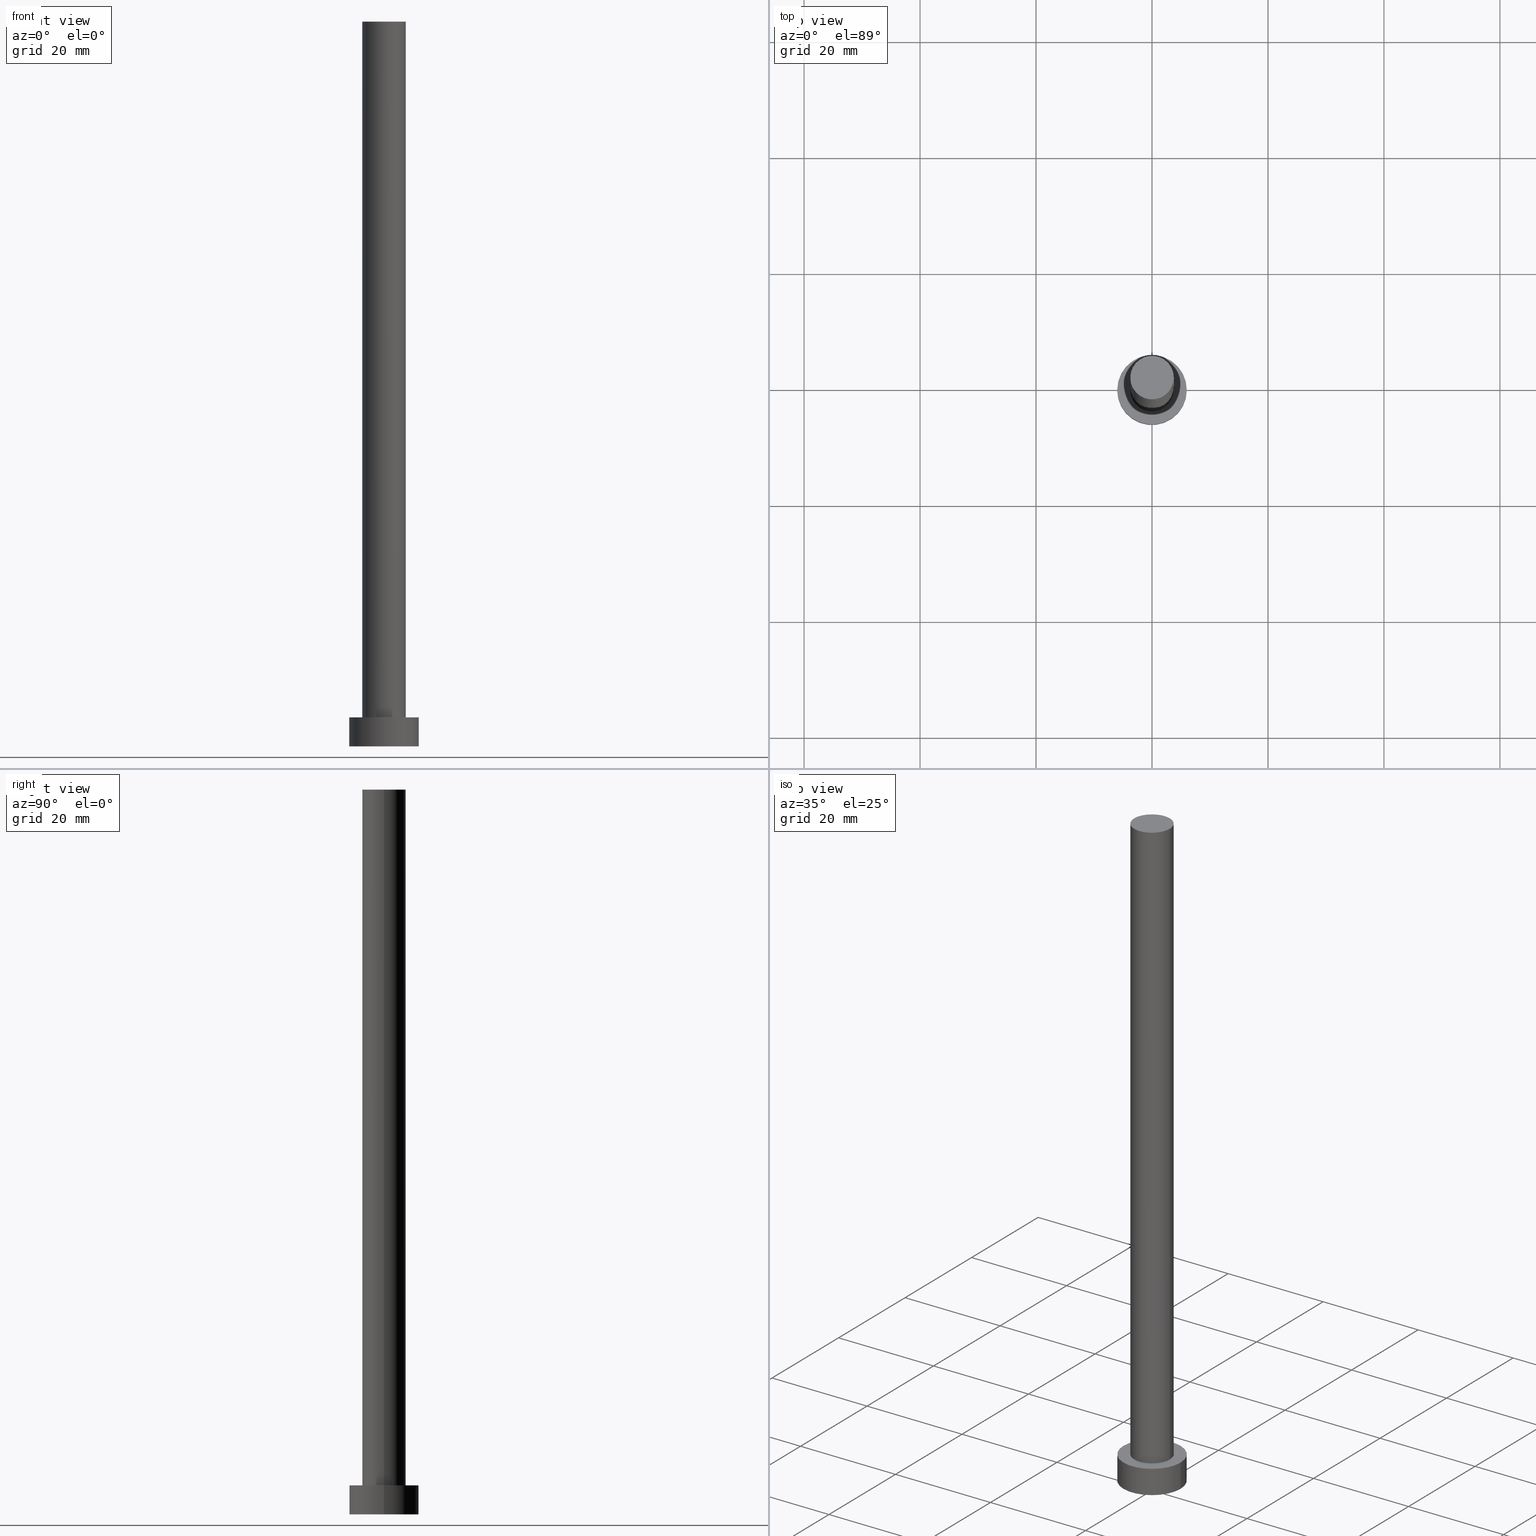
[diagram: canonical four-view strip — front | top / right | iso, engineering-drawing reading convention]
A machine part, canonical four-view strip (front | top / right | iso — engineering-drawing reading convention). The complete STEP part file that produces these views, byte-faithful:
ISO-10303-21;
HEADER;
FILE_DESCRIPTION (( 'STEP AP203' ),
    '1' );
FILE_NAME ('e15b.STEP',
    '2023-02-12T11:57:41',
    ( '' ),
    ( '' ),
    'SwSTEP 2.0',
    'SolidWorks 2019',
    '' );
FILE_SCHEMA (( 'CONFIG_CONTROL_DESIGN' ));
ENDSEC;

DATA;
#1 = CC_DESIGN_APPROVAL ( #147, ( #114 ) ) ;
#2 = ORIENTED_EDGE ( 'NONE', *, *, #187, .F. ) ;
#3 = ADVANCED_FACE ( 'NONE', ( #86 ), #8, .T. ) ;
#4 =( GEOMETRIC_REPRESENTATION_CONTEXT ( 3 ) GLOBAL_UNCERTAINTY_ASSIGNED_CONTEXT ( ( #185 ) ) GLOBAL_UNIT_ASSIGNED_CONTEXT ( ( #99, #79, #65 ) ) REPRESENTATION_CONTEXT ( 'NONE', 'WORKASPACE' ) );
#5 = VERTEX_POINT ( 'NONE', #141 ) ;
#6 = COORDINATED_UNIVERSAL_TIME_OFFSET ( 1, 0, .AHEAD. ) ;
#7 = EDGE_CURVE ( 'NONE', #5, #145, #94, .T. ) ;
#8 = PLANE ( 'NONE',  #134 ) ;
#9 = CLOSED_SHELL ( 'NONE', ( #250, #196, #70, #109, #120, #223, #3 ) ) ;
#10 = APPROVAL_DATE_TIME ( #212, #161 ) ;
#11 = CARTESIAN_POINT ( 'NONE',  ( 0.000000000000000000, 0.000000000000000000, 5.000000000000000000 ) ) ;
#12 = CYLINDRICAL_SURFACE ( 'NONE', #98, 3.750000000000000000 ) ;
#13 = CARTESIAN_POINT ( 'NONE',  ( -6.000000000000000888, 0.000000000000000000, 5.000000000000000000 ) ) ;
#14 = DIRECTION ( 'NONE',  ( 0.000000000000000000, 0.000000000000000000, 1.000000000000000000 ) ) ;
#15 = EDGE_CURVE ( 'NONE', #145, #5, #165, .T. ) ;
#16 = CARTESIAN_POINT ( 'NONE',  ( -6.000000000000000888, 0.000000000000000000, 5.000000000000000000 ) ) ;
#17 = EDGE_CURVE ( 'NONE', #238, #192, #171, .T. ) ;
#18 = PERSON_AND_ORGANIZATION ( #198, #132 ) ;
#19 = AXIS2_PLACEMENT_3D ( 'NONE', #157, #156, #122 ) ;
#20 = CYLINDRICAL_SURFACE ( 'NONE', #178, 3.750000000000000000 ) ;
#21 = ORIENTED_EDGE ( 'NONE', *, *, #17, .T. ) ;
#22 = ORIENTED_EDGE ( 'NONE', *, *, #226, .F. ) ;
#23 = PERSON_AND_ORGANIZATION ( #198, #132 ) ;
#24 = LINE ( 'NONE', #58, #126 ) ;
#25 = CC_DESIGN_PERSON_AND_ORGANIZATION_ASSIGNMENT ( #136, #194, ( #82 ) ) ;
#26 = SECURITY_CLASSIFICATION ( '', '', #207 ) ;
#27 = CARTESIAN_POINT ( 'NONE',  ( 0.000000000000000000, 0.000000000000000000, 125.0000000000000000 ) ) ;
#28 = DIRECTION ( 'NONE',  ( 1.000000000000000000, 0.000000000000000000, 0.000000000000000000 ) ) ;
#29 = VECTOR ( 'NONE', #222, 1000.000000000000000 ) ;
#30 = PLANE ( 'NONE',  #169 ) ;
#31 = CC_DESIGN_PERSON_AND_ORGANIZATION_ASSIGNMENT ( #84, #35, ( #26 ) ) ;
#32 = DIRECTION ( 'NONE',  ( 0.000000000000000000, 0.000000000000000000, 1.000000000000000000 ) ) ;
#33 = DIRECTION ( 'NONE',  ( -0.000000000000000000, -0.000000000000000000, -1.000000000000000000 ) ) ;
#34 = EDGE_CURVE ( 'NONE', #192, #238, #176, .T. ) ;
#35 = PERSON_AND_ORGANIZATION_ROLE ( 'classification_officer' ) ;
#36 = EDGE_LOOP ( 'NONE', ( #108, #2 ) ) ;
#37 = PERSON_AND_ORGANIZATION_ROLE ( 'creator' ) ;
#38 = AXIS2_PLACEMENT_3D ( 'NONE', #183, #123, #179 ) ;
#39 = COORDINATED_UNIVERSAL_TIME_OFFSET ( 1, 0, .AHEAD. ) ;
#40 = DIRECTION ( 'NONE',  ( -0.000000000000000000, -0.000000000000000000, -1.000000000000000000 ) ) ;
#41 = CARTESIAN_POINT ( 'NONE',  ( 0.000000000000000000, 0.000000000000000000, 125.0000000000000000 ) ) ;
#42 = PRODUCT_DEFINITION_SHAPE ( 'NONE', 'NONE',  #130 ) ;
#43 = FACE_OUTER_BOUND ( 'NONE', #233, .T. ) ;
#44 = ADVANCED_BREP_SHAPE_REPRESENTATION ( 'e15b', ( #143, #175 ), #4 ) ;
#45 = CC_DESIGN_SECURITY_CLASSIFICATION ( #26, ( #114 ) ) ;
#46 = VERTEX_POINT ( 'NONE', #160 ) ;
#47 = MECHANICAL_CONTEXT ( 'NONE', #103, 'mechanical' ) ;
#48 = CC_DESIGN_DATE_AND_TIME_ASSIGNMENT ( #189, #253, ( #26 ) ) ;
#49 = ORIENTED_EDGE ( 'NONE', *, *, #15, .T. ) ;
#50 = CIRCLE ( 'NONE', #158, 6.000000000000000888 ) ;
#51 = APPROVAL_DATE_TIME ( #57, #217 ) ;
#52 = CC_DESIGN_APPROVAL ( #217, ( #26 ) ) ;
#53 = APPROVAL_ROLE ( '' ) ;
#54 = EDGE_CURVE ( 'NONE', #46, #64, #50, .T. ) ;
#55 = ORIENTED_EDGE ( 'NONE', *, *, #34, .T. ) ;
#56 = AXIS2_PLACEMENT_3D ( 'NONE', #115, #96, #59 ) ;
#57 = DATE_AND_TIME ( #240, #218 ) ;
#58 = CARTESIAN_POINT ( 'NONE',  ( -3.750000000000000000, 0.000000000000000000, 125.0000000000000000 ) ) ;
#59 = DIRECTION ( 'NONE',  ( 1.000000000000000000, 0.000000000000000000, 0.000000000000000000 ) ) ;
#60 = DIRECTION ( 'NONE',  ( 0.000000000000000000, 0.000000000000000000, 1.000000000000000000 ) ) ;
#61 = DIRECTION ( 'NONE',  ( 1.000000000000000000, 0.000000000000000000, -0.000000000000000000 ) ) ;
#62 = CARTESIAN_POINT ( 'NONE',  ( -6.000000000000000888, 0.000000000000000000, 0.000000000000000000 ) ) ;
#63 = EDGE_LOOP ( 'NONE', ( #254, #148, #110, #67 ) ) ;
#64 = VERTEX_POINT ( 'NONE', #13 ) ;
#65 =( NAMED_UNIT ( * ) SI_UNIT ( $, .STERADIAN. ) SOLID_ANGLE_UNIT ( ) );
#66 = DESIGN_CONTEXT ( 'detailed design', #119, 'design' ) ;
#67 = ORIENTED_EDGE ( 'NONE', *, *, #245, .T. ) ;
#68 = CARTESIAN_POINT ( 'NONE',  ( 0.000000000000000000, 0.000000000000000000, 0.000000000000000000 ) ) ;
#69 = FACE_OUTER_BOUND ( 'NONE', #63, .T. ) ;
#70 = ADVANCED_FACE ( 'NONE', ( #76 ), #78, .T. ) ;
#71 = AXIS2_PLACEMENT_3D ( 'NONE', #128, #230, #131 ) ;
#72 = DIRECTION ( 'NONE',  ( -1.000000000000000000, 0.000000000000000000, 0.000000000000000000 ) ) ;
#73 = ORIENTED_EDGE ( 'NONE', *, *, #54, .F. ) ;
#74 = LOCAL_TIME ( 12, 57, 41.00000000000000000, #6 ) ;
#75 = CARTESIAN_POINT ( 'NONE',  ( 0.000000000000000000, 0.000000000000000000, 125.0000000000000000 ) ) ;
#76 = FACE_OUTER_BOUND ( 'NONE', #83, .T. ) ;
#77 = DIRECTION ( 'NONE',  ( 1.000000000000000000, 0.000000000000000000, 0.000000000000000000 ) ) ;
#78 = CYLINDRICAL_SURFACE ( 'NONE', #38, 6.000000000000000888 ) ;
#79 =( NAMED_UNIT ( * ) PLANE_ANGLE_UNIT ( ) SI_UNIT ( $, .RADIAN. ) );
#80 = APPROVAL_PERSON_ORGANIZATION ( #133, #147, #53 ) ;
#81 = PERSON_AND_ORGANIZATION ( #198, #132 ) ;
#82 = PRODUCT ( 'e15b', 'e15b', '', ( #47 ) ) ;
#83 = EDGE_LOOP ( 'NONE', ( #22, #111, #252, #21 ) ) ;
#84 = PERSON_AND_ORGANIZATION ( #198, #132 ) ;
#85 = CC_DESIGN_APPROVAL ( #161, ( #130 ) ) ;
#86 = FACE_OUTER_BOUND ( 'NONE', #235, .T. ) ;
#87 = CC_DESIGN_PERSON_AND_ORGANIZATION_ASSIGNMENT ( #181, #248, ( #114 ) ) ;
#88 = APPROVAL_STATUS ( 'not_yet_approved' ) ;
#89 = ORIENTED_EDGE ( 'NONE', *, *, #226, .T. ) ;
#90 = EDGE_CURVE ( 'NONE', #64, #238, #225, .T. ) ;
#91 = CARTESIAN_POINT ( 'NONE',  ( -3.750000000000000000, 0.000000000000000000, 125.0000000000000000 ) ) ;
#92 = CIRCLE ( 'NONE', #121, 3.750000000000000000 ) ;
#93 = DIRECTION ( 'NONE',  ( 0.000000000000000000, 0.000000000000000000, 1.000000000000000000 ) ) ;
#94 = CIRCLE ( 'NONE', #102, 3.750000000000000000 ) ;
#95 = CARTESIAN_POINT ( 'NONE',  ( 0.000000000000000000, 0.000000000000000000, 125.0000000000000000 ) ) ;
#96 = DIRECTION ( 'NONE',  ( 0.000000000000000000, 0.000000000000000000, 1.000000000000000000 ) ) ;
#97 = DIRECTION ( 'NONE',  ( 1.000000000000000000, 0.000000000000000000, 0.000000000000000000 ) ) ;
#98 = AXIS2_PLACEMENT_3D ( 'NONE', #95, #182, #124 ) ;
#99 =( LENGTH_UNIT ( ) NAMED_UNIT ( * ) SI_UNIT ( .MILLI., .METRE. ) );
#100 = CC_DESIGN_PERSON_AND_ORGANIZATION_ASSIGNMENT ( #81, #209, ( #114 ) ) ;
#101 = CYLINDRICAL_SURFACE ( 'NONE', #71, 6.000000000000000888 ) ;
#102 = AXIS2_PLACEMENT_3D ( 'NONE', #27, #14, #77 ) ;
#103 = APPLICATION_CONTEXT ( 'configuration controlled 3d designs of mechanical parts and assemblies' ) ;
#104 = VECTOR ( 'NONE', #33, 1000.000000000000000 ) ;
#105 = CALENDAR_DATE ( 2023, 12, 2 ) ;
#106 = VERTEX_POINT ( 'NONE', #163 ) ;
#107 = APPROVAL_ROLE ( '' ) ;
#108 = ORIENTED_EDGE ( 'NONE', *, *, #245, .F. ) ;
#109 = ADVANCED_FACE ( 'NONE', ( #140, #43 ), #221, .T. ) ;
#110 = ORIENTED_EDGE ( 'NONE', *, *, #190, .T. ) ;
#111 = ORIENTED_EDGE ( 'NONE', *, *, #237, .F. ) ;
#112 = EDGE_CURVE ( 'NONE', #5, #106, #155, .T. ) ;
#113 = SHAPE_DEFINITION_REPRESENTATION ( #42, #44 ) ;
#114 = PRODUCT_DEFINITION_FORMATION_WITH_SPECIFIED_SOURCE ( 'LIBOVOLN�', '', #82, .NOT_KNOWN. ) ;
#115 = CARTESIAN_POINT ( 'NONE',  ( 0.000000000000000000, 0.000000000000000000, 0.000000000000000000 ) ) ;
#116 = DATE_AND_TIME ( #195, #211 ) ;
#117 = CARTESIAN_POINT ( 'NONE',  ( 6.000000000000000888, 7.347880794884120722E-16, 0.000000000000000000 ) ) ;
#118 = DATE_AND_TIME ( #216, #74 ) ;
#119 = APPLICATION_CONTEXT ( 'configuration controlled 3d designs of mechanical parts and assemblies' ) ;
#120 = ADVANCED_FACE ( 'NONE', ( #125 ), #30, .F. ) ;
#121 = AXIS2_PLACEMENT_3D ( 'NONE', #247, #159, #28 ) ;
#122 = DIRECTION ( 'NONE',  ( 1.000000000000000000, 0.000000000000000000, 0.000000000000000000 ) ) ;
#123 = DIRECTION ( 'NONE',  ( -0.000000000000000000, -0.000000000000000000, -1.000000000000000000 ) ) ;
#124 = DIRECTION ( 'NONE',  ( -1.000000000000000000, 0.000000000000000000, 0.000000000000000000 ) ) ;
#125 = FACE_OUTER_BOUND ( 'NONE', #206, .T. ) ;
#126 = VECTOR ( 'NONE', #40, 1000.000000000000000 ) ;
#127 = FACE_OUTER_BOUND ( 'NONE', #135, .T. ) ;
#128 = CARTESIAN_POINT ( 'NONE',  ( 0.000000000000000000, 0.000000000000000000, 5.000000000000000000 ) ) ;
#129 = APPROVAL_PERSON_ORGANIZATION ( #23, #161, #150 ) ;
#130 = PRODUCT_DEFINITION ( 'NEZN�M�', '', #114, #66 ) ;
#131 = DIRECTION ( 'NONE',  ( -1.000000000000000000, 0.000000000000000000, 0.000000000000000000 ) ) ;
#132 = ORGANIZATION ( 'NEUR�EN�', 'NEUR�EN�', '' ) ;
#133 = PERSON_AND_ORGANIZATION ( #198, #132 ) ;
#134 = AXIS2_PLACEMENT_3D ( 'NONE', #75, #244, #202 ) ;
#135 = EDGE_LOOP ( 'NONE', ( #228, #152, #251, #146 ) ) ;
#136 = PERSON_AND_ORGANIZATION ( #198, #132 ) ;
#137 = ORIENTED_EDGE ( 'NONE', *, *, #90, .F. ) ;
#138 = LOCAL_TIME ( 12, 57, 41.00000000000000000, #208 ) ;
#139 = CARTESIAN_POINT ( 'NONE',  ( 0.000000000000000000, 0.000000000000000000, 5.000000000000000000 ) ) ;
#140 = FACE_BOUND ( 'NONE', #36, .T. ) ;
#141 = CARTESIAN_POINT ( 'NONE',  ( 3.750000000000000000, 4.592425496802573972E-16, 125.0000000000000000 ) ) ;
#142 = DIRECTION ( 'NONE',  ( -0.000000000000000000, -0.000000000000000000, -1.000000000000000000 ) ) ;
#143 = MANIFOLD_SOLID_BREP ( 'P�idat vysunut�m3', #9 ) ;
#144 = CC_DESIGN_PERSON_AND_ORGANIZATION_ASSIGNMENT ( #18, #37, ( #130 ) ) ;
#145 = VERTEX_POINT ( 'NONE', #91 ) ;
#146 = ORIENTED_EDGE ( 'NONE', *, *, #190, .F. ) ;
#147 = APPROVAL ( #172, 'NEUR�EN�' ) ;
#148 = ORIENTED_EDGE ( 'NONE', *, *, #15, .F. ) ;
#149 = DIRECTION ( 'NONE',  ( 0.000000000000000000, 0.000000000000000000, 1.000000000000000000 ) ) ;
#150 = APPROVAL_ROLE ( '' ) ;
#151 = LINE ( 'NONE', #234, #104 ) ;
#152 = ORIENTED_EDGE ( 'NONE', *, *, #112, .T. ) ;
#153 = EDGE_LOOP ( 'NONE', ( #73, #89, #55, #137 ) ) ;
#154 = COORDINATED_UNIVERSAL_TIME_OFFSET ( 1, 0, .AHEAD. ) ;
#155 = LINE ( 'NONE', #243, #29 ) ;
#156 = DIRECTION ( 'NONE',  ( 0.000000000000000000, 0.000000000000000000, 1.000000000000000000 ) ) ;
#157 = CARTESIAN_POINT ( 'NONE',  ( 0.000000000000000000, 0.000000000000000000, 0.000000000000000000 ) ) ;
#158 = AXIS2_PLACEMENT_3D ( 'NONE', #11, #93, #246 ) ;
#159 = DIRECTION ( 'NONE',  ( 0.000000000000000000, 0.000000000000000000, 1.000000000000000000 ) ) ;
#160 = CARTESIAN_POINT ( 'NONE',  ( 6.000000000000000888, 7.347880794884120722E-16, 5.000000000000000000 ) ) ;
#161 = APPROVAL ( #88, 'NEUR�EN�' ) ;
#162 = AXIS2_PLACEMENT_3D ( 'NONE', #166, #249, #201 ) ;
#163 = CARTESIAN_POINT ( 'NONE',  ( 3.750000000000000000, 4.592425496802573972E-16, 5.000000000000000000 ) ) ;
#164 = APPROVAL_DATE_TIME ( #118, #147 ) ;
#165 = CIRCLE ( 'NONE', #214, 3.750000000000000000 ) ;
#166 = CARTESIAN_POINT ( 'NONE',  ( 0.000000000000000000, 0.000000000000000000, 5.000000000000000000 ) ) ;
#167 = LOCAL_TIME ( 12, 57, 41.00000000000000000, #154 ) ;
#168 = ORIENTED_EDGE ( 'NONE', *, *, #237, .T. ) ;
#169 = AXIS2_PLACEMENT_3D ( 'NONE', #204, #32, #177 ) ;
#170 = ORIENTED_EDGE ( 'NONE', *, *, #54, .T. ) ;
#171 = CIRCLE ( 'NONE', #56, 6.000000000000000888 ) ;
#172 = APPROVAL_STATUS ( 'not_yet_approved' ) ;
#173 = DIRECTION ( 'NONE',  ( -0.000000000000000000, -0.000000000000000000, -1.000000000000000000 ) ) ;
#174 = CC_DESIGN_DATE_AND_TIME_ASSIGNMENT ( #116, #191, ( #130 ) ) ;
#175 = AXIS2_PLACEMENT_3D ( 'NONE', #68, #149, #205 ) ;
#176 = CIRCLE ( 'NONE', #19, 6.000000000000000888 ) ;
#177 = DIRECTION ( 'NONE',  ( 1.000000000000000000, 0.000000000000000000, -0.000000000000000000 ) ) ;
#178 = AXIS2_PLACEMENT_3D ( 'NONE', #210, #173, #72 ) ;
#179 = DIRECTION ( 'NONE',  ( -1.000000000000000000, 0.000000000000000000, 0.000000000000000000 ) ) ;
#180 = VECTOR ( 'NONE', #142, 1000.000000000000000 ) ;
#181 = PERSON_AND_ORGANIZATION ( #198, #132 ) ;
#182 = DIRECTION ( 'NONE',  ( -0.000000000000000000, -0.000000000000000000, -1.000000000000000000 ) ) ;
#183 = CARTESIAN_POINT ( 'NONE',  ( 0.000000000000000000, 0.000000000000000000, 5.000000000000000000 ) ) ;
#184 = PRODUCT_RELATED_PRODUCT_CATEGORY ( 'detail', '', ( #82 ) ) ;
#185 = UNCERTAINTY_MEASURE_WITH_UNIT (LENGTH_MEASURE( 1.000000000000000082E-05 ), #99, 'distance_accuracy_value', 'NONE');
#186 = ORIENTED_EDGE ( 'NONE', *, *, #17, .F. ) ;
#187 = EDGE_CURVE ( 'NONE', #106, #215, #203, .T. ) ;
#188 = ORIENTED_EDGE ( 'NONE', *, *, #7, .T. ) ;
#189 = DATE_AND_TIME ( #105, #138 ) ;
#190 = EDGE_CURVE ( 'NONE', #145, #215, #24, .T. ) ;
#191 = DATE_TIME_ROLE ( 'creation_date' ) ;
#192 = VERTEX_POINT ( 'NONE', #117 ) ;
#193 = CIRCLE ( 'NONE', #162, 6.000000000000000888 ) ;
#194 = PERSON_AND_ORGANIZATION_ROLE ( 'design_owner' ) ;
#195 = CALENDAR_DATE ( 2023, 12, 2 ) ;
#196 = ADVANCED_FACE ( 'NONE', ( #200 ), #101, .T. ) ;
#197 = DIRECTION ( 'NONE',  ( 0.000000000000000000, 0.000000000000000000, 1.000000000000000000 ) ) ;
#198 = PERSON ( 'NEUR�EN�', 'NEUR�EN�', 'NEUR�EN�', ('NEUR�EN�'), ('NEUR�EN�'), ('NEUR�EN�') ) ;
#199 = CARTESIAN_POINT ( 'NONE',  ( -3.750000000000000000, 0.000000000000000000, 5.000000000000000000 ) ) ;
#200 = FACE_OUTER_BOUND ( 'NONE', #153, .T. ) ;
#201 = DIRECTION ( 'NONE',  ( 1.000000000000000000, 0.000000000000000000, 0.000000000000000000 ) ) ;
#202 = DIRECTION ( 'NONE',  ( 1.000000000000000000, 0.000000000000000000, -0.000000000000000000 ) ) ;
#203 = CIRCLE ( 'NONE', #236, 3.750000000000000000 ) ;
#204 = CARTESIAN_POINT ( 'NONE',  ( 0.000000000000000000, 0.000000000000000000, 0.000000000000000000 ) ) ;
#205 = DIRECTION ( 'NONE',  ( 1.000000000000000000, 0.000000000000000000, 0.000000000000000000 ) ) ;
#206 = EDGE_LOOP ( 'NONE', ( #186, #232 ) ) ;
#207 = SECURITY_CLASSIFICATION_LEVEL ( 'unclassified' ) ;
#208 = COORDINATED_UNIVERSAL_TIME_OFFSET ( 1, 0, .AHEAD. ) ;
#209 = PERSON_AND_ORGANIZATION_ROLE ( 'design_supplier' ) ;
#210 = CARTESIAN_POINT ( 'NONE',  ( 0.000000000000000000, 0.000000000000000000, 125.0000000000000000 ) ) ;
#211 = LOCAL_TIME ( 12, 57, 41.00000000000000000, #39 ) ;
#212 = DATE_AND_TIME ( #220, #167 ) ;
#213 = AXIS2_PLACEMENT_3D ( 'NONE', #224, #197, #61 ) ;
#214 = AXIS2_PLACEMENT_3D ( 'NONE', #41, #60, #97 ) ;
#215 = VERTEX_POINT ( 'NONE', #199 ) ;
#216 = CALENDAR_DATE ( 2023, 12, 2 ) ;
#217 = APPROVAL ( #229, 'NEUR�EN�' ) ;
#218 = LOCAL_TIME ( 12, 57, 41.00000000000000000, #255 ) ;
#219 = DIRECTION ( 'NONE',  ( 1.000000000000000000, 0.000000000000000000, 0.000000000000000000 ) ) ;
#220 = CALENDAR_DATE ( 2023, 12, 2 ) ;
#221 = PLANE ( 'NONE',  #213 ) ;
#222 = DIRECTION ( 'NONE',  ( -0.000000000000000000, -0.000000000000000000, -1.000000000000000000 ) ) ;
#223 = ADVANCED_FACE ( 'NONE', ( #69 ), #20, .T. ) ;
#224 = CARTESIAN_POINT ( 'NONE',  ( 0.000000000000000000, 0.000000000000000000, 5.000000000000000000 ) ) ;
#225 = LINE ( 'NONE', #16, #180 ) ;
#226 = EDGE_CURVE ( 'NONE', #46, #192, #151, .T. ) ;
#227 = APPLICATION_PROTOCOL_DEFINITION ( 'international standard', 'config_control_design', 1994, #103 ) ;
#228 = ORIENTED_EDGE ( 'NONE', *, *, #7, .F. ) ;
#229 = APPROVAL_STATUS ( 'not_yet_approved' ) ;
#230 = DIRECTION ( 'NONE',  ( -0.000000000000000000, -0.000000000000000000, -1.000000000000000000 ) ) ;
#231 = PERSON_AND_ORGANIZATION ( #198, #132 ) ;
#232 = ORIENTED_EDGE ( 'NONE', *, *, #34, .F. ) ;
#233 = EDGE_LOOP ( 'NONE', ( #168, #170 ) ) ;
#234 = CARTESIAN_POINT ( 'NONE',  ( 6.000000000000000888, 7.347880794884120722E-16, 5.000000000000000000 ) ) ;
#235 = EDGE_LOOP ( 'NONE', ( #49, #188 ) ) ;
#236 = AXIS2_PLACEMENT_3D ( 'NONE', #139, #239, #219 ) ;
#237 = EDGE_CURVE ( 'NONE', #64, #46, #193, .T. ) ;
#238 = VERTEX_POINT ( 'NONE', #62 ) ;
#239 = DIRECTION ( 'NONE',  ( 0.000000000000000000, 0.000000000000000000, 1.000000000000000000 ) ) ;
#240 = CALENDAR_DATE ( 2023, 12, 2 ) ;
#241 = APPROVAL_PERSON_ORGANIZATION ( #231, #217, #107 ) ;
#242 = APPLICATION_PROTOCOL_DEFINITION ( 'international standard', 'config_control_design', 1994, #119 ) ;
#243 = CARTESIAN_POINT ( 'NONE',  ( 3.750000000000000000, 4.592425496802573972E-16, 125.0000000000000000 ) ) ;
#244 = DIRECTION ( 'NONE',  ( 0.000000000000000000, 0.000000000000000000, 1.000000000000000000 ) ) ;
#245 = EDGE_CURVE ( 'NONE', #215, #106, #92, .T. ) ;
#246 = DIRECTION ( 'NONE',  ( 1.000000000000000000, 0.000000000000000000, 0.000000000000000000 ) ) ;
#247 = CARTESIAN_POINT ( 'NONE',  ( 0.000000000000000000, 0.000000000000000000, 5.000000000000000000 ) ) ;
#248 = PERSON_AND_ORGANIZATION_ROLE ( 'creator' ) ;
#249 = DIRECTION ( 'NONE',  ( 0.000000000000000000, 0.000000000000000000, 1.000000000000000000 ) ) ;
#250 = ADVANCED_FACE ( 'NONE', ( #127 ), #12, .T. ) ;
#251 = ORIENTED_EDGE ( 'NONE', *, *, #187, .T. ) ;
#252 = ORIENTED_EDGE ( 'NONE', *, *, #90, .T. ) ;
#253 = DATE_TIME_ROLE ( 'classification_date' ) ;
#254 = ORIENTED_EDGE ( 'NONE', *, *, #112, .F. ) ;
#255 = COORDINATED_UNIVERSAL_TIME_OFFSET ( 1, 0, .AHEAD. ) ;
ENDSEC;
END-ISO-10303-21;
